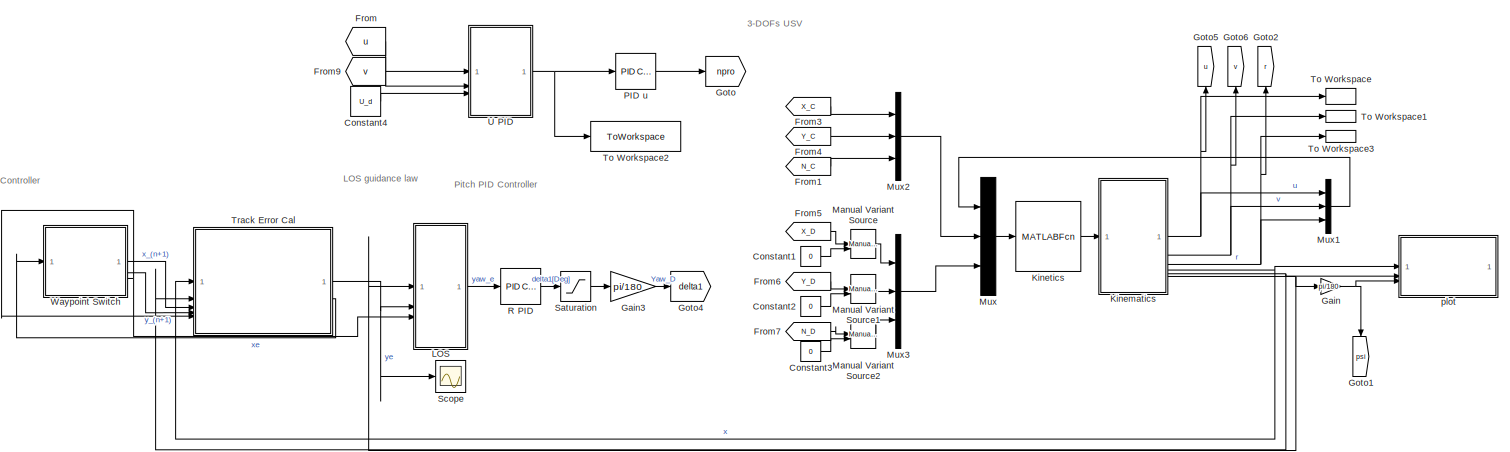
[diagram: root canvas - part 1/3, full width, top band]
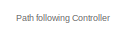
[diagram: root canvas - part 2/3, top left region]
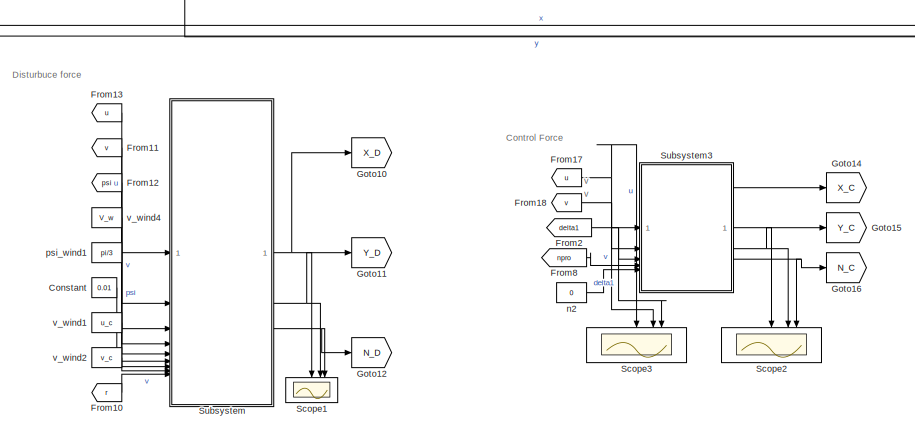
[diagram: root canvas - part 3/3, bottom center region]
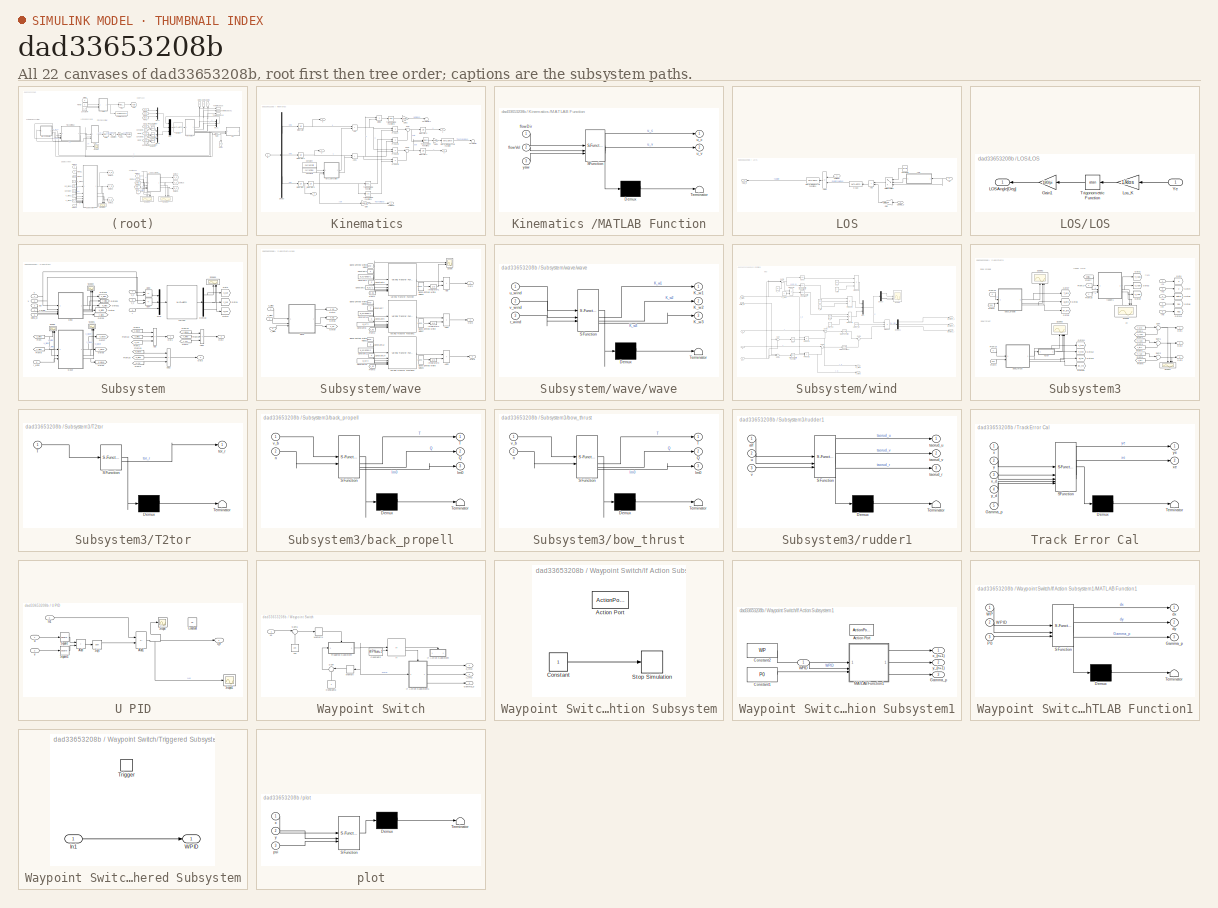
[diagram: thumbnail index - all 22 canvases of the model, root first then tree order]
MODEL slx_dad33653208b
KIND model
CONFIG AbsTol = auto
CONFIG EnableMultiTasking = off
CONFIG FixedStep = 0.01
CONFIG InitFcn = InitParam_cs;\n
CONFIG MaxStep = auto
CONFIG MinStep = auto
CONFIG RelTol = 1e-3
CONFIG SampleTimeConstraint = Unconstrained
CONFIG SolverName = FixedStepAuto
CONFIG StartTime = 0
CONFIG StopFcn = plotTrack;
CONFIG StopTime = inf
BLOCK [Constant] Constant
  Value = 0.01
BLOCK [Constant] Constant1
  Value = 0
BLOCK [Constant] Constant2
  Value = 0
BLOCK [Constant] Constant3
  Value = 0
BLOCK [Constant] Constant4
  Value = U_d
BLOCK [From] From
  GotoTag = u
BLOCK [From] From1
  GotoTag = N_C
BLOCK [From] From10
  GotoTag = r
BLOCK [From] From11
  GotoTag = v
BLOCK [From] From12
  GotoTag = psi
BLOCK [From] From13
  GotoTag = u
BLOCK [From] From17
  GotoTag = u
BLOCK [From] From18
  GotoTag = v
BLOCK [From] From2
  GotoTag = delta1
BLOCK [From] From3
  GotoTag = X_C
BLOCK [From] From4
  GotoTag = Y_C
BLOCK [From] From5
  GotoTag = X_D
BLOCK [From] From6
  GotoTag = Y_D
BLOCK [From] From7
  GotoTag = N_D
BLOCK [From] From8
  GotoTag = npro
BLOCK [From] From9
  GotoTag = v
BLOCK [Gain] Gain
  Gain = pi/180
BLOCK [Gain] Gain3
  Gain = pi/180
BLOCK [Goto] Goto
  GotoTag = npro
BLOCK [Goto] Goto1
  GotoTag = psi
  NameLocation = left
BLOCK [Goto] Goto10
  GotoTag = X_D
BLOCK [Goto] Goto11
  GotoTag = Y_D
BLOCK [Goto] Goto12
  GotoTag = N_D
BLOCK [Goto] Goto14
  GotoTag = X_C
BLOCK [Goto] Goto15
  GotoTag = Y_C
BLOCK [Goto] Goto16
  GotoTag = N_C
BLOCK [Goto] Goto2
  GotoTag = r
  NameLocation = right
BLOCK [Goto] Goto4
  GotoTag = delta1
BLOCK [Goto] Goto5
  GotoTag = u
  NameLocation = right
BLOCK [Goto] Goto6
  GotoTag = v
  NameLocation = right
BLOCK [SubSystem] Kinematics 
BLOCK [Sum] Kinematics /Add
  IconShape = rectangular
BLOCK [Sum] Kinematics /Add1
  IconShape = rectangular
BLOCK [Constant] Kinematics /Constant
  Value = currentDir
BLOCK [Constant] Kinematics /Constant1
  Value = currentVel
BLOCK [Demux] Kinematics /Demux
  Outputs = 3
BLOCK [Product] Kinematics /Divide
  Inputs = */
BLOCK [Gain] Kinematics /Gain
  Gain = 180/pi
BLOCK [Gain] Kinematics /Gain1
  Gain = 180/pi
BLOCK [Gain] Kinematics /Gain2
  Gain = 180/pi
BLOCK [Inport] Kinematics /In
BLOCK [Integrator] Kinematics /Integrator
  InitialCondition = u0
BLOCK [Integrator] Kinematics /Integrator1
BLOCK [Integrator] Kinematics /Integrator2
BLOCK [Integrator] Kinematics /Integrator3
  InitialCondition = B0(1)
BLOCK [Integrator] Kinematics /Integrator4
  InitialCondition = B0(2)
BLOCK [Integrator] Kinematics /Integrator5
  InitialCondition = yawInit*pi/180
  WrapState = on
  WrappedStateLowerValue = 0
  WrappedStateUpperValue = 6.2832
BLOCK [MATLABFcn] Kinematics /Interpreted MATLAB Function
  MATLABFcn = OrientationDegSat
BLOCK [SubSystem] Kinematics /MATLAB Function
  ErrorFcn = Stateflow.Translate.translate
  PermitHierarchicalResolution = ExplicitOnly
  SFBlockType = MATLAB Function
  TreatAsAtomicUnit = on
BLOCK [Demux] Kinematics /MATLAB Function/ Demux 
  Outputs = 1
BLOCK [S-Function] Kinematics /MATLAB Function/ SFunction 
  EnableBusSupport = on
  FunctionName = sf_sfun
  PortCounts = [3 3]
  SFcnIsStateOwnerBlock = off
  SFunctionDeploymentMode = off
  Tag = Stateflow S-Function 4
BLOCK [Terminator] Kinematics /MATLAB Function/ Terminator 
BLOCK [Inport] Kinematics /MATLAB Function/flowDir
BLOCK [Inport] Kinematics /MATLAB Function/flowVel
  Port = 2
BLOCK [Outport] Kinematics /MATLAB Function/u_c
BLOCK [Outport] Kinematics /MATLAB Function/u_v
  Port = 2
BLOCK [Inport] Kinematics /MATLAB Function/yaw
  Port = 3
BLOCK [Product] Kinematics /Product
BLOCK [Product] Kinematics /Product1
BLOCK [Product] Kinematics /Product2
BLOCK [Product] Kinematics /Product3
BLOCK [Sum] Kinematics /Sum
  Inputs = |+-
BLOCK [Sum] Kinematics /Sum1
  Inputs = |++
BLOCK [Terminator] Kinematics /Terminator
BLOCK [Terminator] Kinematics /Terminator1
BLOCK [Trigonometry] Kinematics /Trigonometric Function
BLOCK [Trigonometry] Kinematics /Trigonometric Function1
  Operator = cos
BLOCK [Trigonometry] Kinematics /Trigonometric Function2
  Operator = atan2
BLOCK [Trigonometry] Kinematics /Trigonometric Function3
  Operator = atan
BLOCK [Outport] Kinematics /Yaw[Deg]
  Port = 6
BLOCK [Outport] Kinematics /r
  Port = 3
BLOCK [Outport] Kinematics /u
BLOCK [Outport] Kinematics /v
  Port = 2
BLOCK [Outport] Kinematics /x
  Port = 4
BLOCK [Outport] Kinematics /y
  Port = 5
BLOCK [MATLABFcn] Kinetics
  MATLABFcn = USVforce
  OutputDimensions = 3
  OutputSignalType = real
BLOCK [SubSystem] LOS
  NameLocation = top
BLOCK [MATLABFcn] LOS/0-360
  MATLABFcn = OrientationDegSat
  NameLocation = top
  OutputDimensions = 1
BLOCK [Sum] LOS/Add
  IconShape = rectangular
  NameLocation = top
BLOCK [Sum] LOS/Add1
  IconShape = rectangular
  Inputs = -+
  NameLocation = top
BLOCK [Constant] LOS/Constant1
  NameLocation = top
  Value = losAlg
BLOCK [Gain] LOS/Gain
  Gain = 180/pi
  NameLocation = top
BLOCK [Inport] LOS/Gamma_p
  Port = 3
BLOCK [MATLABFcn] LOS/Interpreted MATLAB Function1
  MATLABFcn = OrientationErrorDegSat
  NameLocation = top
  OutputDimensions = 1
BLOCK [SubSystem] LOS/LOS
  NameLocation = top
BLOCK [Gain] LOS/LOS/Gain1
  Gain = 180/pi
  NameLocation = top
BLOCK [Outport] LOS/LOS/LOSAngle[Deg]
BLOCK [Gain] LOS/LOS/Los_K
  Gain = 1/klos
  NameLocation = top
BLOCK [Trigonometry] LOS/LOS/Trigonometric Function
  NameLocation = top
  Operator = atan
BLOCK [Inport] LOS/LOS/Ye
BLOCK [MultiPortSwitch] LOS/Multiport Switch
  InputSameDT = off
  Inputs = 2
  NameLocation = top
  SaturateOnIntegerOverflow = off
BLOCK [Outport] LOS/Yaw_e
  NameLocation = top
BLOCK [Inport] LOS/Ye
  Port = 2
BLOCK [Inport] LOS/psi[Deg]
BLOCK [Reference] Manual Variant Source  REF=simulink/Signal
Routing/Manual
Variant Source
  SourceBlock = simulink/Signal\nRouting/Manual\nVariant Source
  SourceType = ManualVariantSource
BLOCK [Reference] Manual Variant Source1  REF=simulink/Signal
Routing/Manual
Variant Source
  SourceBlock = simulink/Signal\nRouting/Manual\nVariant Source
  SourceType = ManualVariantSource
BLOCK [Reference] Manual Variant Source2  REF=simulink/Signal
Routing/Manual
Variant Source
  SourceBlock = simulink/Signal\nRouting/Manual\nVariant Source
  SourceType = ManualVariantSource
BLOCK [Mux] Mux
  DisplayOption = bar
  Inputs = 3
BLOCK [Mux] Mux1
  DisplayOption = bar
  Inputs = 3
BLOCK [Mux] Mux2
  DisplayOption = bar
  Inputs = 3
BLOCK [Mux] Mux3
  DisplayOption = bar
  Inputs = 3
BLOCK [Reference] PID u  REF=slpidlib/PID Controller
  LibrarySourceBlock = simulink/Continuous/PID Controller
  SourceBlock = slpidlib/PID Controller
  SourceType = PID 1dof
BLOCK [Reference] R PID   REF=slpidlib/PID Controller
  SourceBlock = slpidlib/PID Controller
  SourceType = PID 1dof
BLOCK [Saturate] Saturation
  LowerLimit = -60
  NameLocation = top
  UpperLimit = 60
BLOCK [Scope] Scope
  Floating = off
  NumInputPorts = 1
  ScopeSpecificationString = Simulink.scopes.TimeScopeBlockCfg('CurrentConfiguration', extmgr.ConfigurationSet(extmgr.Configuration('Core','General UI',true),extmgr.Configuration('Core','Source UI',true),extmgr.Configuration('Sources','WiredSimulink',true,'DataLoggingVariableName','ScopeData1'),extmgr.Configuration('Visuals','Time Domain',true,'SerializedDisplays',{struct('MinYLimReal','-1.00873','MaxYLimReal','9.07856','YLab...<+1643ch>
BLOCK [Scope] Scope1
  Floating = off
  NameLocation = left
  NumInputPorts = 3
  ScopeSpecificationString = Simulink.scopes.TimeScopeBlockCfg('CurrentConfiguration', extmgr.ConfigurationSet(extmgr.Configuration('Core','General UI',true),extmgr.Configuration('Core','Source UI',true),extmgr.Configuration('Sources','WiredSimulink',true,'DataLoggingVariableName','tD','DataLogging',true,'DataLoggingSaveFormat','Structure'),extmgr.Configuration('Visuals','Time Domain',true,'SerializedDisplays',{struct('MinYLi...<+1734ch>
BLOCK [Scope] Scope2
  Floating = off
  NameLocation = left
  NumInputPorts = 3
  ScopeSpecificationString = Simulink.scopes.TimeScopeBlockCfg('CurrentConfiguration', extmgr.ConfigurationSet(extmgr.Configuration('Core','General UI',true),extmgr.Configuration('Core','Source UI',true),extmgr.Configuration('Sources','WiredSimulink',true,'DataLogging',true,'DataLoggingSaveFormat','Structure','DataLoggingVariableName','tC'),extmgr.Configuration('Visuals','Time Domain',true,'SerializedDisplays',{struct('MinYLi...<+2808ch>
BLOCK [Scope] Scope3
  Floating = off
  NameLocation = left
  NumInputPorts = 3
  ScopeSpecificationString = Simulink.scopes.TimeScopeBlockCfg('CurrentConfiguration', extmgr.ConfigurationSet(extmgr.Configuration('Core','General UI',true),extmgr.Configuration('Core','Source UI',true),extmgr.Configuration('Sources','WiredSimulink',true,'DataLogging',true,'DataLoggingSaveFormat','Structure','DataLoggingVariableName','ScopeData6'),extmgr.Configuration('Visuals','Time Domain',true,'SerializedDisplays',{struct...<+2801ch>
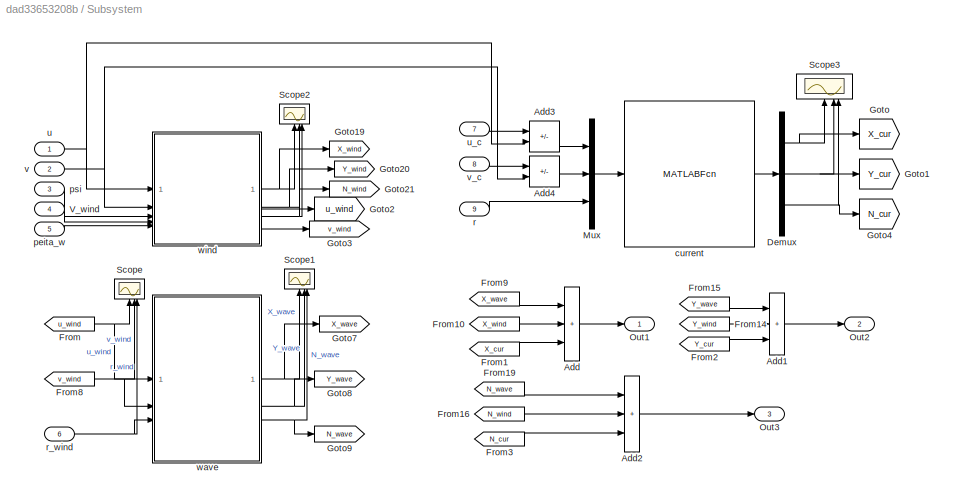
BLOCK [SubSystem] Subsystem
BLOCK [Sum] Subsystem/Add
  IconShape = rectangular
  Inputs = +++
BLOCK [Sum] Subsystem/Add1
  IconShape = rectangular
  Inputs = +++
BLOCK [Sum] Subsystem/Add2
  IconShape = rectangular
  Inputs = +++
BLOCK [Sum] Subsystem/Add3
  IconShape = rectangular
  Inputs = +-
BLOCK [Sum] Subsystem/Add4
  IconShape = rectangular
  Inputs = +-
BLOCK [Demux] Subsystem/Demux
  Outputs = 3
BLOCK [From] Subsystem/From
  GotoTag = u_wind
BLOCK [From] Subsystem/From1
  GotoTag = X_cur
BLOCK [From] Subsystem/From10
  GotoTag = X_wind
BLOCK [From] Subsystem/From14
  GotoTag = Y_wind
BLOCK [From] Subsystem/From15
  GotoTag = Y_wave
BLOCK [From] Subsystem/From16
  GotoTag = N_wind
BLOCK [From] Subsystem/From19
  GotoTag = N_wave
BLOCK [From] Subsystem/From2
  GotoTag = Y_cur
BLOCK [From] Subsystem/From3
  GotoTag = N_cur
BLOCK [From] Subsystem/From8
  GotoTag = v_wind
BLOCK [From] Subsystem/From9
  GotoTag = X_wave
BLOCK [Goto] Subsystem/Goto
  GotoTag = X_cur
BLOCK [Goto] Subsystem/Goto1
  GotoTag = Y_cur
BLOCK [Goto] Subsystem/Goto19
  GotoTag = X_wind
BLOCK [Goto] Subsystem/Goto2
  GotoTag = u_wind
BLOCK [Goto] Subsystem/Goto20
  GotoTag = Y_wind
BLOCK [Goto] Subsystem/Goto21
  GotoTag = N_wind
BLOCK [Goto] Subsystem/Goto3
  GotoTag = v_wind
BLOCK [Goto] Subsystem/Goto4
  GotoTag = N_cur
BLOCK [Goto] Subsystem/Goto7
  GotoTag = X_wave
BLOCK [Goto] Subsystem/Goto8
  GotoTag = Y_wave
BLOCK [Goto] Subsystem/Goto9
  GotoTag = N_wave
BLOCK [Mux] Subsystem/Mux
  DisplayOption = bar
  Inputs = 3
BLOCK [Outport] Subsystem/Out1
BLOCK [Outport] Subsystem/Out2
  Port = 2
BLOCK [Outport] Subsystem/Out3
  Port = 3
BLOCK [Scope] Subsystem/Scope
  Floating = off
  NameLocation = right
  NumInputPorts = 3
  ScopeSpecificationString = Simulink.scopes.TimeScopeBlockCfg('CurrentConfiguration', extmgr.ConfigurationSet(extmgr.Configuration('Core','General UI',true),extmgr.Configuration('Core','Source UI',true),extmgr.Configuration('Sources','WiredSimulink',true,'DataLoggingVariableName','ScopeData1'),extmgr.Configuration('Visuals','Time Domain',true,'SerializedDisplays',{struct('MinYLimReal','0.45331','MaxYLimReal','0.73848','YLabe...<+2800ch>
BLOCK [Scope] Subsystem/Scope1
  Floating = off
  NameLocation = right
  NumInputPorts = 3
  ScopeSpecificationString = Simulink.scopes.TimeScopeBlockCfg('CurrentConfiguration', extmgr.ConfigurationSet(extmgr.Configuration('Core','General UI',true),extmgr.Configuration('Core','Source UI',true),extmgr.Configuration('Sources','WiredSimulink',true,'DataLoggingVariableName','twave','DataLogging',true,'DataLoggingSaveFormat','Structure'),extmgr.Configuration('Visuals','Time Domain',true,'SerializedDisplays',{struct('Min...<+2785ch>
BLOCK [Scope] Subsystem/Scope2
  Floating = off
  NameLocation = right
  NumInputPorts = 3
  ScopeSpecificationString = Simulink.scopes.TimeScopeBlockCfg('CurrentConfiguration', extmgr.ConfigurationSet(extmgr.Configuration('Core','General UI',true),extmgr.Configuration('Core','Source UI',true),extmgr.Configuration('Sources','WiredSimulink',true,'DataLoggingVariableName','twind','DataLogging',true,'DataLoggingSaveFormat','Structure'),extmgr.Configuration('Visuals','Time Domain',true,'SerializedDisplays',{struct('Min...<+2921ch>
BLOCK [Scope] Subsystem/Scope3
  Floating = off
  NameLocation = right
  NumInputPorts = 3
  ScopeSpecificationString = Simulink.scopes.TimeScopeBlockCfg('CurrentConfiguration', extmgr.ConfigurationSet(extmgr.Configuration('Core','General UI',true),extmgr.Configuration('Core','Source UI',true),extmgr.Configuration('Sources','WiredSimulink',true,'DataLoggingVariableName','tcur','DataLogging',true,'DataLoggingSaveFormat','Structure'),extmgr.Configuration('Visuals','Time Domain',true,'SerializedDisplays',{struct('MinY...<+2920ch>
BLOCK [Inport] Subsystem/V_wind
  Port = 4
BLOCK [MATLABFcn] Subsystem/current
  MATLABFcn = current
BLOCK [Inport] Subsystem/peita_w
  Port = 5
BLOCK [Inport] Subsystem/psi
  Port = 3
BLOCK [Inport] Subsystem/r
  Port = 9
BLOCK [Inport] Subsystem/r_wind
  Port = 6
BLOCK [Inport] Subsystem/u
BLOCK [Inport] Subsystem/u_c
  Port = 7
BLOCK [Inport] Subsystem/v
  Port = 2
BLOCK [Inport] Subsystem/v_c
  Port = 8
BLOCK [SubSystem] Subsystem/wave
BLOCK [Sum] Subsystem/wave/Add
  IconShape = rectangular
BLOCK [Sum] Subsystem/wave/Add1
  IconShape = rectangular
BLOCK [Sum] Subsystem/wave/Add2
  IconShape = rectangular
BLOCK [Reference] Subsystem/wave/Band-Limited White Noise  REF=simulink/Sources/Band-Limited
White Noise
  SourceBlock = simulink/Sources/Band-Limited\nWhite Noise
  SourceType = Band-Limited White Noise.
BLOCK [Reference] Subsystem/wave/Band-Limited White Noise1  REF=simulink/Sources/Band-Limited
White Noise
  SourceBlock = simulink/Sources/Band-Limited\nWhite Noise
  SourceType = Band-Limited White Noise.
BLOCK [Reference] Subsystem/wave/Band-Limited White Noise2  REF=simulink/Sources/Band-Limited
White Noise
  SourceBlock = simulink/Sources/Band-Limited\nWhite Noise
  SourceType = Band-Limited White Noise.
BLOCK [Reference] Subsystem/wave/Band-Limited White Noise3  REF=simulink/Sources/Band-Limited
White Noise
  SourceBlock = simulink/Sources/Band-Limited\nWhite Noise
  SourceType = Band-Limited White Noise.
BLOCK [Reference] Subsystem/wave/Band-Limited White Noise6  REF=simulink/Sources/Band-Limited
White Noise
  SourceBlock = simulink/Sources/Band-Limited\nWhite Noise
  SourceType = Band-Limited White Noise.
BLOCK [Reference] Subsystem/wave/Band-Limited White Noise7  REF=simulink/Sources/Band-Limited
White Noise
  SourceBlock = simulink/Sources/Band-Limited\nWhite Noise
  SourceType = Band-Limited White Noise.
BLOCK [Constant] Subsystem/wave/Constant1
  Value = 0
BLOCK [Constant] Subsystem/wave/Constant10
  Value = w_e2*lamda*2
BLOCK [Constant] Subsystem/wave/Constant11
  Value = w_e6*lamda*2
BLOCK [Constant] Subsystem/wave/Constant12
  Value = 0
BLOCK [Constant] Subsystem/wave/Constant13
  Value = w_e6^2
BLOCK [Constant] Subsystem/wave/Constant14
  Value = 0
BLOCK [Constant] Subsystem/wave/Constant2
  Value = w_e1^2
BLOCK [Constant] Subsystem/wave/Constant3
  Value = 0
BLOCK [Constant] Subsystem/wave/Constant4
  Value = w_e1*lamda*2
BLOCK [Constant] Subsystem/wave/Constant7
  Value = 0
BLOCK [Constant] Subsystem/wave/Constant8
  Value = w_e2^2
BLOCK [Constant] Subsystem/wave/Constant9
  Value = 0
BLOCK [From] Subsystem/wave/From1
  GotoTag = k_w1
BLOCK [From] Subsystem/wave/From2
  GotoTag = k_w2
BLOCK [From] Subsystem/wave/From3
  GotoTag = k_w3
BLOCK [Goto] Subsystem/wave/Goto7
  GotoTag = k_w1
BLOCK [Goto] Subsystem/wave/Goto8
  GotoTag = k_w2
BLOCK [Goto] Subsystem/wave/Goto9
  GotoTag = k_w3
BLOCK [Integrator] Subsystem/wave/Integrator1
BLOCK [Integrator] Subsystem/wave/Integrator2
BLOCK [Integrator] Subsystem/wave/Integrator3
BLOCK [Outport] Subsystem/wave/Out1
BLOCK [Outport] Subsystem/wave/Out2
  Port = 2
BLOCK [Outport] Subsystem/wave/Out3
  Port = 3
BLOCK [Scope] Subsystem/wave/Scope
  Floating = off
  NumInputPorts = 2
  ScopeSpecificationString = Simulink.scopes.TimeScopeBlockCfg('CurrentConfiguration', extmgr.ConfigurationSet(extmgr.Configuration('Core','General UI',true),extmgr.Configuration('Core','Source UI',true),extmgr.Configuration('Sources','WiredSimulink',true,'DataLoggingVariableName','ScopeData3'),extmgr.Configuration('Visuals','Time Domain',true,'SerializedDisplays',{struct('MinYLimReal','-3.52342','MaxYLimReal','2.68855','YLab...<+1490ch>
BLOCK [Reference] Subsystem/wave/Varying Transfer Function  REF=cstblocks/Linear Parameter Varying/Varying Transfer Function
  SourceBlock = cstblocks/Linear Parameter Varying/Varying Transfer Function
  SourceType = Varying Transfer Function
BLOCK [Reference] Subsystem/wave/Varying Transfer Function1  REF=cstblocks/Linear Parameter Varying/Varying Transfer Function
  SourceBlock = cstblocks/Linear Parameter Varying/Varying Transfer Function
  SourceType = Varying Transfer Function
BLOCK [Reference] Subsystem/wave/Varying Transfer Function2  REF=cstblocks/Linear Parameter Varying/Varying Transfer Function
  SourceBlock = cstblocks/Linear Parameter Varying/Varying Transfer Function
  SourceType = Varying Transfer Function
BLOCK [Inport] Subsystem/wave/r_wind
  Port = 3
BLOCK [Inport] Subsystem/wave/u_wind
BLOCK [Inport] Subsystem/wave/v_wind
  Port = 2
BLOCK [SubSystem] Subsystem/wave/wave
  ErrorFcn = Stateflow.Translate.translate
  PermitHierarchicalResolution = ExplicitOnly
  SFBlockType = MATLAB Function
  TreatAsAtomicUnit = on
BLOCK [Demux] Subsystem/wave/wave/ Demux 
  Outputs = 1
BLOCK [S-Function] Subsystem/wave/wave/ SFunction 
  EnableBusSupport = on
  FunctionName = sf_sfun
  PortCounts = [3 4]
  SFcnIsStateOwnerBlock = off
  SFunctionDeploymentMode = off
  Tag = Stateflow S-Function 7
BLOCK [Terminator] Subsystem/wave/wave/ Terminator 
BLOCK [Outport] Subsystem/wave/wave/K_w1
BLOCK [Outport] Subsystem/wave/wave/K_w2
  Port = 2
BLOCK [Outport] Subsystem/wave/wave/K_w3
  Port = 3
BLOCK [Inport] Subsystem/wave/wave/r_wind
  Port = 3
BLOCK [Inport] Subsystem/wave/wave/u_wind
BLOCK [Inport] Subsystem/wave/wave/v_wind
  Port = 2
BLOCK [SubSystem] Subsystem/wind
BLOCK [Constant] Subsystem/wind/1//2rou_air
  Value = 0.645
BLOCK [Constant] Subsystem/wind/A_fw
BLOCK [Constant] Subsystem/wind/A_lw
BLOCK [Constant] Subsystem/wind/A_lw*L_oq
BLOCK [Constant] Subsystem/wind/C_n
  Value = 0.1
BLOCK [Constant] Subsystem/wind/C_x
  Value = -0.6
BLOCK [Constant] Subsystem/wind/C_y
  Value = -0.8
BLOCK [Constant] Subsystem/wind/C_y1
  Value = pi
BLOCK [Trigonometry] Subsystem/wind/Cos
  Operator = cos
BLOCK [Trigonometry] Subsystem/wind/Cos1
  Operator = cos
BLOCK [Demux] Subsystem/wind/Demux
  Outputs = 3
BLOCK [Demux] Subsystem/wind/Demux1
  Outputs = 3
BLOCK [Constant] Subsystem/wind/L_oa1
  Value = 2
BLOCK [Math] Subsystem/wind/Math Function
  Operator = square
  SignedPower = on
BLOCK [Math] Subsystem/wind/Math Function1
  Operator = square
  SignedPower = on
BLOCK [Mux] Subsystem/wind/Mux
  DisplayOption = bar
  Inputs = 3
BLOCK [Product] Subsystem/wind/Product
  Inputs = 3
BLOCK [Product] Subsystem/wind/Product1
BLOCK [Product] Subsystem/wind/Product2
BLOCK [Product] Subsystem/wind/Product3
  Inputs = 3
BLOCK [Product] Subsystem/wind/Product4
  Inputs = 3
BLOCK [Product] Subsystem/wind/Product5
  Inputs = 3
BLOCK [Product] Subsystem/wind/Product6
BLOCK [Scope] Subsystem/wind/Scope
  Floating = off
  NumInputPorts = 3
  ScopeSpecificationString = Simulink.scopes.TimeScopeBlockCfg('CurrentConfiguration', extmgr.ConfigurationSet(extmgr.Configuration('Core','General UI',true),extmgr.Configuration('Core','Source UI',true),extmgr.Configuration('Sources','WiredSimulink',true),extmgr.Configuration('Visuals','Time Domain',true,'SerializedDisplays',{struct('MinYLimReal','0.5','MaxYLimReal','0.7','YLabelReal','','MinYLimMag','0.5','MaxYLimMag','0.7'...<+2656ch>
BLOCK [Sum] Subsystem/wind/Sum
  Inputs = |+-
BLOCK [Sum] Subsystem/wind/Sum1
  Inputs = |+-
BLOCK [Sum] Subsystem/wind/Sum2
  Inputs = |+-
BLOCK [Sum] Subsystem/wind/Sum3
  Inputs = |+-
BLOCK [Sum] Subsystem/wind/Sum4
  Inputs = |++
BLOCK [Sum] Subsystem/wind/Sum5
  Inputs = |+--
BLOCK [Trigonometry] Subsystem/wind/Trigonometric Function
BLOCK [Trigonometry] Subsystem/wind/Trigonometric Function1
BLOCK [Trigonometry] Subsystem/wind/Trigonometric Function2
BLOCK [Inport] Subsystem/wind/V_wind
  Port = 4
BLOCK [Inport] Subsystem/wind/peita_w
  Port = 5
BLOCK [Inport] Subsystem/wind/psi
  Port = 3
BLOCK [Outport] Subsystem/wind/taowind_r
  Port = 3
  VectorParamsAs1DForOutWhenUnconnected = off
BLOCK [Outport] Subsystem/wind/taowind_u
  VectorParamsAs1DForOutWhenUnconnected = off
BLOCK [Outport] Subsystem/wind/taowind_v
  Port = 2
  VectorParamsAs1DForOutWhenUnconnected = off
BLOCK [Inport] Subsystem/wind/u
BLOCK [Outport] Subsystem/wind/u_wind
  Port = 4
  VectorParamsAs1DForOutWhenUnconnected = off
BLOCK [Inport] Subsystem/wind/v
  Port = 2
BLOCK [Outport] Subsystem/wind/v_wind
  Port = 5
  VectorParamsAs1DForOutWhenUnconnected = off
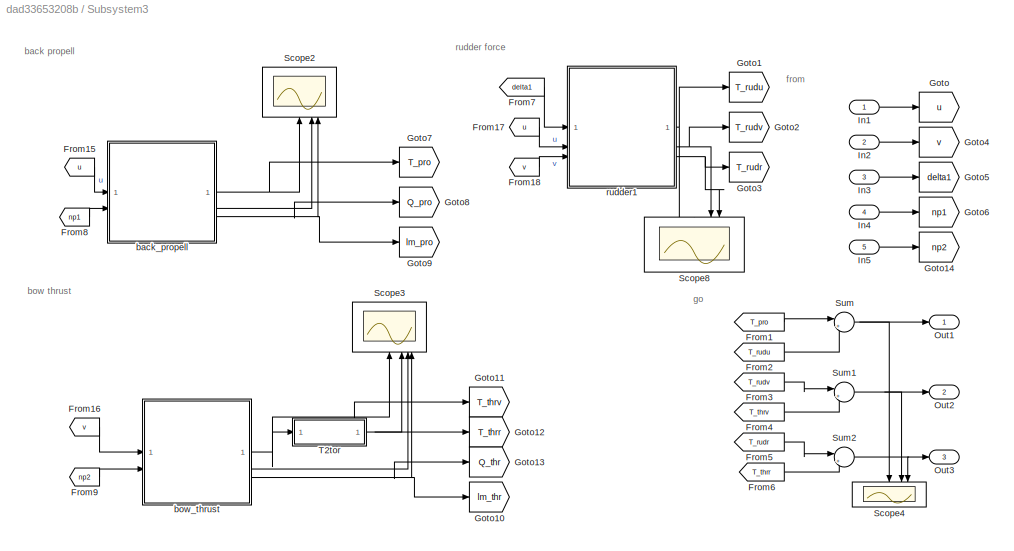
BLOCK [SubSystem] Subsystem3
BLOCK [From] Subsystem3/From1
  GotoTag = T_pro
BLOCK [From] Subsystem3/From15
  GotoTag = u
BLOCK [From] Subsystem3/From16
  GotoTag = v
BLOCK [From] Subsystem3/From17
  GotoTag = u
BLOCK [From] Subsystem3/From18
  GotoTag = v
BLOCK [From] Subsystem3/From2
  GotoTag = T_rudu
BLOCK [From] Subsystem3/From3
  GotoTag = T_rudv
BLOCK [From] Subsystem3/From4
  GotoTag = T_thrv
BLOCK [From] Subsystem3/From5
  GotoTag = T_rudr
BLOCK [From] Subsystem3/From6
  GotoTag = T_thrr
BLOCK [From] Subsystem3/From7
  GotoTag = delta1
BLOCK [From] Subsystem3/From8
  GotoTag = np1
BLOCK [From] Subsystem3/From9
  GotoTag = np2
BLOCK [Goto] Subsystem3/Goto
  GotoTag = u
BLOCK [Goto] Subsystem3/Goto1
  GotoTag = T_rudu
BLOCK [Goto] Subsystem3/Goto10
  GotoTag = lm_thr
BLOCK [Goto] Subsystem3/Goto11
  GotoTag = T_thrv
BLOCK [Goto] Subsystem3/Goto12
  GotoTag = T_thrr
BLOCK [Goto] Subsystem3/Goto13
  GotoTag = Q_thr
BLOCK [Goto] Subsystem3/Goto14
  GotoTag = np2
BLOCK [Goto] Subsystem3/Goto2
  GotoTag = T_rudv
BLOCK [Goto] Subsystem3/Goto3
  GotoTag = T_rudr
BLOCK [Goto] Subsystem3/Goto4
  GotoTag = v
BLOCK [Goto] Subsystem3/Goto5
  GotoTag = delta1
BLOCK [Goto] Subsystem3/Goto6
  GotoTag = np1
BLOCK [Goto] Subsystem3/Goto7
  GotoTag = T_pro
BLOCK [Goto] Subsystem3/Goto8
  GotoTag = Q_pro
BLOCK [Goto] Subsystem3/Goto9
  GotoTag = lm_pro
BLOCK [Inport] Subsystem3/In1
BLOCK [Inport] Subsystem3/In2
  Port = 2
BLOCK [Inport] Subsystem3/In3
  Port = 3
BLOCK [Inport] Subsystem3/In4
  Port = 4
BLOCK [Inport] Subsystem3/In5
  Port = 5
BLOCK [Outport] Subsystem3/Out1
BLOCK [Outport] Subsystem3/Out2
  Port = 2
BLOCK [Outport] Subsystem3/Out3
  Port = 3
BLOCK [Scope] Subsystem3/Scope2
  Floating = off
  NameLocation = right
  NumInputPorts = 3
  ScopeSpecificationString = Simulink.scopes.TimeScopeBlockCfg('CurrentConfiguration', extmgr.ConfigurationSet(extmgr.Configuration('Core','General UI',true),extmgr.Configuration('Core','Source UI',true),extmgr.Configuration('Sources','WiredSimulink',true,'DataLoggingSaveFormat','Structure','DataLoggingVariableName','ScopeData1'),extmgr.Configuration('Visuals','Time Domain',true,'SerializedDisplays',{struct('MinYLimReal','53....<+3131ch>
BLOCK [Scope] Subsystem3/Scope3
  Floating = off
  NameLocation = right
  NumInputPorts = 4
  ScopeSpecificationString = Simulink.scopes.TimeScopeBlockCfg('CurrentConfiguration', extmgr.ConfigurationSet(extmgr.Configuration('Core','General UI',true),extmgr.Configuration('Core','Source UI',true),extmgr.Configuration('Sources','WiredSimulink',true,'DataLoggingSaveFormat','Structure','DataLoggingVariableName','ScopeData2'),extmgr.Configuration('Visuals','Time Domain',true,'SerializedDisplays',{struct('MinYLimReal','0.0...<+2758ch>
BLOCK [Scope] Subsystem3/Scope4
  Floating = off
  NameLocation = left
  NumInputPorts = 3
  ScopeSpecificationString = Simulink.scopes.TimeScopeBlockCfg('CurrentConfiguration', extmgr.ConfigurationSet(extmgr.Configuration('Core','General UI',true),extmgr.Configuration('Core','Source UI',true),extmgr.Configuration('Sources','WiredSimulink',true,'DataLoggingSaveFormat','Structure','DataLoggingVariableName','ScopeData2'),extmgr.Configuration('Visuals','Time Domain',true,'SerializedDisplays',{struct('MinYLimReal','63....<+2825ch>
BLOCK [Scope] Subsystem3/Scope8
  Floating = off
  NameLocation = left
  NumInputPorts = 3
  ScopeSpecificationString = Simulink.scopes.TimeScopeBlockCfg('CurrentConfiguration', extmgr.ConfigurationSet(extmgr.Configuration('Core','General UI',true),extmgr.Configuration('Core','Source UI',true),extmgr.Configuration('Sources','WiredSimulink',true,'DataLogging',true,'DataLoggingSaveFormat','Structure','DataLoggingVariableName','ScopeData4'),extmgr.Configuration('Visuals','Time Domain',true,'SerializedDisplays',{struct...<+2836ch>
BLOCK [Sum] Subsystem3/Sum
  Inputs = |++
BLOCK [Sum] Subsystem3/Sum1
  Inputs = |++
BLOCK [Sum] Subsystem3/Sum2
  Inputs = |++
BLOCK [SubSystem] Subsystem3/T2tor
  ErrorFcn = Stateflow.Translate.translate
  PermitHierarchicalResolution = ExplicitOnly
  SFBlockType = MATLAB Function
  TreatAsAtomicUnit = on
BLOCK [Demux] Subsystem3/T2tor/ Demux 
  Outputs = 1
BLOCK [S-Function] Subsystem3/T2tor/ SFunction 
  EnableBusSupport = on
  FunctionName = sf_sfun
  PortCounts = [1 2]
  SFcnIsStateOwnerBlock = off
  SFunctionDeploymentMode = off
  Tag = Stateflow S-Function 5
BLOCK [Terminator] Subsystem3/T2tor/ Terminator 
BLOCK [Inport] Subsystem3/T2tor/T
BLOCK [Outport] Subsystem3/T2tor/tor_r
BLOCK [SubSystem] Subsystem3/back_propell
  ErrorFcn = Stateflow.Translate.translate
  PermitHierarchicalResolution = ExplicitOnly
  SFBlockType = MATLAB Function
  TreatAsAtomicUnit = on
BLOCK [Demux] Subsystem3/back_propell/ Demux 
  Outputs = 1
BLOCK [S-Function] Subsystem3/back_propell/ SFunction 
  EnableBusSupport = on
  FunctionName = sf_sfun
  PortCounts = [2 4]
  SFcnIsStateOwnerBlock = off
  SFunctionDeploymentMode = off
  Tag = Stateflow S-Function 3
BLOCK [Terminator] Subsystem3/back_propell/ Terminator 
BLOCK [Outport] Subsystem3/back_propell/Q
  Port = 2
BLOCK [Outport] Subsystem3/back_propell/T
BLOCK [Outport] Subsystem3/back_propell/lm0
  Port = 3
BLOCK [Inport] Subsystem3/back_propell/n
  Port = 2
BLOCK [Inport] Subsystem3/back_propell/v_b
BLOCK [SubSystem] Subsystem3/bow_thrust
  ErrorFcn = Stateflow.Translate.translate
  PermitHierarchicalResolution = ExplicitOnly
  SFBlockType = MATLAB Function
  TreatAsAtomicUnit = on
BLOCK [Demux] Subsystem3/bow_thrust/ Demux 
  Outputs = 1
BLOCK [S-Function] Subsystem3/bow_thrust/ SFunction 
  EnableBusSupport = on
  FunctionName = sf_sfun
  PortCounts = [2 4]
  SFcnIsStateOwnerBlock = off
  SFunctionDeploymentMode = off
  Tag = Stateflow S-Function 6
BLOCK [Terminator] Subsystem3/bow_thrust/ Terminator 
BLOCK [Outport] Subsystem3/bow_thrust/Q
  Port = 2
BLOCK [Outport] Subsystem3/bow_thrust/T
BLOCK [Outport] Subsystem3/bow_thrust/lm0
  Port = 3
BLOCK [Inport] Subsystem3/bow_thrust/n
  Port = 2
BLOCK [Inport] Subsystem3/bow_thrust/v_b
BLOCK [SubSystem] Subsystem3/rudder1
  ErrorFcn = Stateflow.Translate.translate
  PermitHierarchicalResolution = ExplicitOnly
  SFBlockType = MATLAB Function
  TreatAsAtomicUnit = on
BLOCK [Demux] Subsystem3/rudder1/ Demux 
  Outputs = 1
BLOCK [S-Function] Subsystem3/rudder1/ SFunction 
  EnableBusSupport = on
  FunctionName = sf_sfun
  PortCounts = [3 4]
  SFcnIsStateOwnerBlock = off
  SFunctionDeploymentMode = off
  Tag = Stateflow S-Function 9
BLOCK [Terminator] Subsystem3/rudder1/ Terminator 
BLOCK [Inport] Subsystem3/rudder1/alf
BLOCK [Outport] Subsystem3/rudder1/taorud_r
  Port = 3
BLOCK [Outport] Subsystem3/rudder1/taorud_u
BLOCK [Outport] Subsystem3/rudder1/taorud_v
  Port = 2
BLOCK [Inport] Subsystem3/rudder1/u
  Port = 2
BLOCK [Inport] Subsystem3/rudder1/v
  Port = 3
BLOCK [ToWorkspace] To Workspace
  FixptAsFi = on
  MaxDataPoints = inf
  SampleTime = -1
  VariableName = u
BLOCK [ToWorkspace] To Workspace1
  FixptAsFi = on
  MaxDataPoints = inf
  SampleTime = -1
  VariableName = v
BLOCK [ToWorkspace] To Workspace2
  FixptAsFi = on
  MaxDataPoints = inf
  SampleTime = -1
  SaveFormat = Timeseries
  VariableName = Ue
BLOCK [ToWorkspace] To Workspace3
  FixptAsFi = on
  MaxDataPoints = inf
  SampleTime = -1
  VariableName = r
BLOCK [SubSystem] Track Error Cal
  ErrorFcn = Stateflow.Translate.translate
  NameLocation = top
  PermitHierarchicalResolution = ExplicitOnly
  SFBlockType = MATLAB Function
  TreatAsAtomicUnit = on
BLOCK [Demux] Track Error Cal/ Demux 
  Outputs = 1
BLOCK [S-Function] Track Error Cal/ SFunction 
  EnableBusSupport = on
  FunctionName = sf_sfun
  PortCounts = [5 3]
  SFcnIsStateOwnerBlock = off
  SFunctionDeploymentMode = off
  Tag = Stateflow S-Function 2
BLOCK [Terminator] Track Error Cal/ Terminator 
BLOCK [Inport] Track Error Cal/Gamma_p
  Port = 5
BLOCK [Inport] Track Error Cal/x
BLOCK [Inport] Track Error Cal/x_d
  Port = 3
BLOCK [Outport] Track Error Cal/xe
  Port = 2
BLOCK [Inport] Track Error Cal/y
  Port = 2
BLOCK [Inport] Track Error Cal/y_d
  Port = 4
BLOCK [Outport] Track Error Cal/ye
BLOCK [SubSystem] U PID
BLOCK [Sum] U PID/Add
  IconShape = rectangular
BLOCK [Sum] U PID/Add1
  IconShape = rectangular
  Inputs = +-
BLOCK [Constant] U PID/Constant
  Value = 40
BLOCK [Inport] U PID/In1
  Port = 3
BLOCK [Scope] U PID/Scope
  Floating = off
  NumInputPorts = 1
  ScopeSpecificationString = Simulink.scopes.TimeScopeBlockCfg('CurrentConfiguration', extmgr.ConfigurationSet(extmgr.Configuration('Core','General UI',true),extmgr.Configuration('Core','Source UI',true),extmgr.Configuration('Sources','WiredSimulink',true,'DataLoggingVariableName','ScopeData2'),extmgr.Configuration('Visuals','Time Domain',true,'SerializedDisplays',{struct('MinYLimReal','-1.53473','MaxYLimReal','4.17053','YLab...<+1431ch>
BLOCK [Scope] U PID/Scope1
  Floating = off
  NumInputPorts = 1
  ScopeSpecificationString = Simulink.scopes.TimeScopeBlockCfg('CurrentConfiguration', extmgr.ConfigurationSet(extmgr.Configuration('Core','General UI',true),extmgr.Configuration('Core','Source UI',true),extmgr.Configuration('Sources','WiredSimulink',true,'DataLoggingVariableName','ScopeData1'),extmgr.Configuration('Visuals','Time Domain',true,'SerializedDisplays',{struct('MinYLimReal','-171660430.47261','MaxYLimReal','190733...<+1627ch>
BLOCK [Sqrt] U PID/Sqrt
BLOCK [Math] U PID/Square
  Operator = square
  RndMeth = Zero
  SignedPower = on
BLOCK [Math] U PID/Square1
  Operator = square
  RndMeth = Zero
  SignedPower = on
BLOCK [Inport] U PID/u
BLOCK [Outport] U PID/u_e
BLOCK [Inport] U PID/v
  Port = 2
BLOCK [SubSystem] Waypoint Switch
  NameLocation = top
BLOCK [Constant] Waypoint Switch/Constant2
  Value = WPNum+1
BLOCK [Constant] Waypoint Switch/Constant3
  NameLocation = right
BLOCK [Outport] Waypoint Switch/Gamma_p
  Port = 3
BLOCK [If] Waypoint Switch/If
  IfExpression = u1 >= u2
  NumInputs = 2
BLOCK [SubSystem] Waypoint Switch/If Action Subsystem
  TreatAsAtomicUnit = on
BLOCK [ActionPort] Waypoint Switch/If Action Subsystem/Action Port
  ActionPortLabel = if(u1 >= u2)
BLOCK [Constant] Waypoint Switch/If Action Subsystem/Constant
BLOCK [Stop] Waypoint Switch/If Action Subsystem/Stop Simulation
BLOCK [SubSystem] Waypoint Switch/If Action Subsystem1
  TreatAsAtomicUnit = on
BLOCK [ActionPort] Waypoint Switch/If Action Subsystem1/Action Port
  ActionPortLabel = else
BLOCK [Constant] Waypoint Switch/If Action Subsystem1/Constant1
  Value = P0
BLOCK [Constant] Waypoint Switch/If Action Subsystem1/Constant2
  Value = WP
BLOCK [Outport] Waypoint Switch/If Action Subsystem1/Gamma_p
  Port = 3
BLOCK [SubSystem] Waypoint Switch/If Action Subsystem1/MATLAB Function1
  ErrorFcn = Stateflow.Translate.translate
  PermitHierarchicalResolution = ExplicitOnly
  SFBlockType = MATLAB Function
  TreatAsAtomicUnit = on
BLOCK [Demux] Waypoint Switch/If Action Subsystem1/MATLAB Function1/ Demux 
  Outputs = 1
BLOCK [S-Function] Waypoint Switch/If Action Subsystem1/MATLAB Function1/ SFunction 
  EnableBusSupport = on
  FunctionName = sf_sfun
  PortCounts = [3 4]
  SFcnIsStateOwnerBlock = off
  SFunctionDeploymentMode = off
  Tag = Stateflow S-Function 1
BLOCK [Terminator] Waypoint Switch/If Action Subsystem1/MATLAB Function1/ Terminator 
BLOCK [Outport] Waypoint Switch/If Action Subsystem1/MATLAB Function1/Gamma_p
  Port = 3
BLOCK [Inport] Waypoint Switch/If Action Subsystem1/MATLAB Function1/P0
  Port = 3
BLOCK [Inport] Waypoint Switch/If Action Subsystem1/MATLAB Function1/WP
BLOCK [Inport] Waypoint Switch/If Action Subsystem1/MATLAB Function1/WPID
  Port = 2
BLOCK [Outport] Waypoint Switch/If Action Subsystem1/MATLAB Function1/dx
BLOCK [Outport] Waypoint Switch/If Action Subsystem1/MATLAB Function1/dy
  Port = 2
BLOCK [Inport] Waypoint Switch/If Action Subsystem1/WPID
BLOCK [Outport] Waypoint Switch/If Action Subsystem1/x_(n+1)
BLOCK [Outport] Waypoint Switch/If Action Subsystem1/y_(n+1)
  Port = 2
BLOCK [Memory] Waypoint Switch/Memory
  InheritSampleTime = on
  InitialCondition = 1
  NameLocation = top
BLOCK [Memory] Waypoint Switch/Memory1
  InheritSampleTime = on
  InitialCondition = 5
BLOCK [Sum] Waypoint Switch/Sum
  Inputs = |++
  NameLocation = top
BLOCK [Sum] Waypoint Switch/Sum1
  Inputs = |+-
BLOCK [SubSystem] Waypoint Switch/Triggered Subsystem
  TreatAsAtomicUnit = on
BLOCK [Inport] Waypoint Switch/Triggered Subsystem/In1
BLOCK [TriggerPort] Waypoint Switch/Triggered Subsystem/Trigger
  StatesWhenEnabling = held
  TriggerType = falling
  VariantControl = Variant
BLOCK [Outport] Waypoint Switch/Triggered Subsystem/WPID
  InitialOutput = 1
BLOCK [Outport] Waypoint Switch/x_(n+1)
BLOCK [Inport] Waypoint Switch/xe
BLOCK [Constant] Waypoint Switch/xm
  NameLocation = right
  Value = xm
BLOCK [Outport] Waypoint Switch/y_(n+1)
  Port = 2
BLOCK [Constant] n2
  Value = 0
BLOCK [SubSystem] plot
  Commented = on
  ErrorFcn = Stateflow.Translate.translate
  PermitHierarchicalResolution = ExplicitOnly
  SFBlockType = MATLAB Function
  TreatAsAtomicUnit = on
BLOCK [Demux] plot/ Demux 
  Outputs = 1
BLOCK [S-Function] plot/ SFunction 
  EnableBusSupport = on
  FunctionName = sf_sfun
  PortCounts = [3 1]
  SFcnIsStateOwnerBlock = off
  SFunctionDeploymentMode = off
  Tag = Stateflow S-Function 8
BLOCK [Terminator] plot/ Terminator 
BLOCK [Inport] plot/psi
  Port = 3
BLOCK [Inport] plot/x
BLOCK [Inport] plot/y
  Port = 2
BLOCK [Constant] psi_wind1
  Value = pi/3
BLOCK [Constant] v_wind1
  Value = u_c
BLOCK [Constant] v_wind2
  Value = v_c
BLOCK [Constant] v_wind4
  Value = V_w
ANNOTATION (root): 3-DOFs USV
ANNOTATION (root): Control Force
ANNOTATION (root): Disturbuce force
ANNOTATION (root): LOS guidance law
ANNOTATION (root): Path following Controller
ANNOTATION (root): Pitch PID Controller
ANNOTATION (root): v
ANNOTATION Subsystem/wind: wind
ANNOTATION Subsystem3: back propell
ANNOTATION Subsystem3: bow thrust
ANNOTATION Subsystem3: from
ANNOTATION Subsystem3: go
ANNOTATION Subsystem3: rudder force
LINE Constant1:1 -> Manual Variant Source:2
LINE Constant2:1 -> Manual Variant Source1:2
LINE Constant3:1 -> Manual Variant Source2:2
LINE Constant4:1 -> U PID:3
LINE Constant:1 -> Subsystem:6
LINE From10:1 -> Subsystem:9
LINE From11:1 -> Subsystem:2
LINE From12:1 -> Subsystem:3
LINE From13:1 -> Subsystem:1
NET From17:1 -> Scope3:1, Subsystem3:1
NET From18:1 -> Scope3:2, Subsystem3:2
LINE From1:1 -> Mux2:3
NET From2:1 -> Scope3:3, Subsystem3:3
LINE From3:1 -> Mux2:1
LINE From4:1 -> Mux2:2
LINE From5:1 -> Manual Variant Source:1
LINE From6:1 -> Manual Variant Source1:1
LINE From7:1 -> Manual Variant Source2:1
LINE From8:1 -> Subsystem3:4
LINE From9:1 -> U PID:2
LINE From:1 -> U PID:1
LINE Gain3:1 -> Goto4:1
NET Gain:1 -> Goto1:1, plot:3
NET Kinematics /Add1:1 -> Kinematics /Divide:1, Kinematics /Product1:2, Kinematics /Product3:1
NET Kinematics /Add:1 -> Kinematics /Divide:2, Kinematics /Product2:1, Kinematics /Product:1
LINE Kinematics /Constant1:1 -> Kinematics /MATLAB Function:2
LINE Kinematics /Constant:1 -> Kinematics /MATLAB Function:1
LINE Kinematics /Demux:1 -> Kinematics /Integrator:1
LINE Kinematics /Demux:2 -> Kinematics /Integrator2:1
LINE Kinematics /Demux:3 -> Kinematics /Integrator1:1
LINE Kinematics /Divide:1 -> Kinematics /Trigonometric Function3:1
LINE Kinematics /Gain1:1 -> Kinematics /Interpreted MATLAB Function:1
LINE Kinematics /Gain2:1 -> Kinematics /Terminator1:1
LINE Kinematics /Gain:1 -> Kinematics /Yaw[Deg]:1
LINE Kinematics /In:1 -> Kinematics /Demux:1
NET Kinematics /Integrator1:1 -> Kinematics /Integrator5:1, Kinematics /r:1
NET Kinematics /Integrator2:1 -> Kinematics /Add1:1, Kinematics /v:1
LINE Kinematics /Integrator3:1 -> Kinematics /x:1
LINE Kinematics /Integrator4:1 -> Kinematics /y:1
NET Kinematics /Integrator5:1 -> Kinematics /Gain:1, Kinematics /MATLAB Function:3, Kinematics /Trigonometric Function1:1, Kinematics /Trigonometric Function:1
NET Kinematics /Integrator:1 -> Kinematics /Add:1, Kinematics /u:1
LINE Kinematics /Interpreted MATLAB Function:1 -> Kinematics /Terminator:1
LINE Kinematics /MATLAB Function:1 -> Kinematics /Add:2
LINE Kinematics /MATLAB Function:2 -> Kinematics /Add1:2
LINE Kinematics /Product1:1 -> Kinematics /Sum:2
LINE Kinematics /Product2:1 -> Kinematics /Sum1:1
LINE Kinematics /Product3:1 -> Kinematics /Sum1:2
LINE Kinematics /Product:1 -> Kinematics /Sum:1
NET Kinematics /Sum1:1 -> Kinematics /Integrator4:1, Kinematics /Trigonometric Function2:1
NET Kinematics /Sum:1 -> Kinematics /Integrator3:1, Kinematics /Trigonometric Function2:2
NET Kinematics /Trigonometric Function1:1 -> Kinematics /Product3:2, Kinematics /Product:2
LINE Kinematics /Trigonometric Function2:1 -> Kinematics /Gain1:1
LINE Kinematics /Trigonometric Function3:1 -> Kinematics /Gain2:1
NET Kinematics /Trigonometric Function:1 -> Kinematics /Product1:1, Kinematics /Product2:2
NET Kinematics :1 -> Goto5:1, Mux1:1, To Workspace:1
NET Kinematics :2 -> Goto6:1, Mux1:2, To Workspace1:1
NET Kinematics :3 -> Goto2:1, Mux1:3, To Workspace3:1
NET Kinematics :4 -> Track Error Cal:1, plot:1
NET Kinematics :5 -> Track Error Cal:2, plot:2
NET Kinematics :6 -> Gain:1, LOS:1
LINE Kinetics:1 -> Kinematics :1
LINE LOS/0-360:1 -> LOS/Add1:2
LINE LOS/Add1:1 -> LOS/Interpreted MATLAB Function1:1
LINE LOS/Add:1 -> LOS/0-360:1
LINE LOS/Constant1:1 -> LOS/Multiport Switch:1
LINE LOS/Gain:1 -> LOS/Add:2
LINE LOS/Gamma_p:1 -> LOS/Gain:1
LINE LOS/Interpreted MATLAB Function1:1 -> LOS/Yaw_e:1
LINE LOS/LOS/Gain1:1 -> LOS/LOS/LOSAngle[Deg]:1
LINE LOS/LOS/Los_K:1 -> LOS/LOS/Trigonometric Function:1
LINE LOS/LOS/Trigonometric Function:1 -> LOS/LOS/Gain1:1
LINE LOS/LOS/Ye:1 -> LOS/LOS/Los_K:1
LINE LOS/LOS:1 -> LOS/Multiport Switch:2
LINE LOS/Multiport Switch:1 -> LOS/Add:1
NET LOS/Ye:1 -> LOS/LOS:1, LOS/Multiport Switch:3
LINE LOS/psi[Deg]:1 -> LOS/Add1:1
LINE LOS:1 -> R PID :1
LINE Manual Variant Source1:1 -> Mux3:2
LINE Manual Variant Source2:1 -> Mux3:3
LINE Manual Variant Source:1 -> Mux3:1
LINE Mux1:1 -> Mux:1
LINE Mux2:1 -> Mux:2
LINE Mux3:1 -> Mux:3
LINE Mux:1 -> Kinetics:1
LINE PID u:1 -> Goto:1
LINE R PID :1 -> Saturation:1
LINE Saturation:1 -> Gain3:1
LINE Subsystem/Add1:1 -> Subsystem/Out2:1
LINE Subsystem/Add2:1 -> Subsystem/Out3:1
LINE Subsystem/Add3:1 -> Subsystem/Mux:1
LINE Subsystem/Add4:1 -> Subsystem/Mux:2
LINE Subsystem/Add:1 -> Subsystem/Out1:1
NET Subsystem/Demux:1 -> Subsystem/Goto:1, Subsystem/Scope3:1
NET Subsystem/Demux:2 -> Subsystem/Goto1:1, Subsystem/Scope3:2
NET Subsystem/Demux:3 -> Subsystem/Goto4:1, Subsystem/Scope3:3
LINE Subsystem/From10:1 -> Subsystem/Add:2
LINE Subsystem/From14:1 -> Subsystem/Add1:2
LINE Subsystem/From15:1 -> Subsystem/Add1:1
LINE Subsystem/From16:1 -> Subsystem/Add2:2
LINE Subsystem/From19:1 -> Subsystem/Add2:1
LINE Subsystem/From1:1 -> Subsystem/Add:3
LINE Subsystem/From2:1 -> Subsystem/Add1:3
LINE Subsystem/From3:1 -> Subsystem/Add2:3
NET Subsystem/From8:1 -> Subsystem/Scope:2, Subsystem/wave:2
LINE Subsystem/From9:1 -> Subsystem/Add:1
NET Subsystem/From:1 -> Subsystem/Scope:1, Subsystem/wave:1
LINE Subsystem/Mux:1 -> Subsystem/current:1
LINE Subsystem/V_wind:1 -> Subsystem/wind:4
LINE Subsystem/current:1 -> Subsystem/Demux:1
LINE Subsystem/peita_w:1 -> Subsystem/wind:5
LINE Subsystem/psi:1 -> Subsystem/wind:3
LINE Subsystem/r:1 -> Subsystem/Mux:3
NET Subsystem/r_wind:1 -> Subsystem/Scope:3, Subsystem/wave:3
NET Subsystem/u:1 -> Subsystem/Add3:2, Subsystem/wind:1
LINE Subsystem/u_c:1 -> Subsystem/Add3:1
NET Subsystem/v:1 -> Subsystem/Add4:2, Subsystem/wind:2
LINE Subsystem/v_c:1 -> Subsystem/Add4:1
LINE Subsystem/wave/Add1:1 -> Subsystem/wave/Out2:1
LINE Subsystem/wave/Add2:1 -> Subsystem/wave/Out3:1
LINE Subsystem/wave/Add:1 -> Subsystem/wave/Out1:1
LINE Subsystem/wave/Band-Limited White Noise1:1 -> Subsystem/wave/Integrator1:1
LINE Subsystem/wave/Band-Limited White Noise2:1 -> Subsystem/wave/Varying Transfer Function2:1
LINE Subsystem/wave/Band-Limited White Noise3:1 -> Subsystem/wave/Integrator3:1
LINE Subsystem/wave/Band-Limited White Noise6:1 -> Subsystem/wave/Varying Transfer Function1:1
LINE Subsystem/wave/Band-Limited White Noise7:1 -> Subsystem/wave/Integrator2:1
NET Subsystem/wave/Band-Limited White Noise:1 -> Subsystem/wave/Scope:1, Subsystem/wave/Varying Transfer Function:1
LINE Subsystem/wave/Constant10:1 -> Subsystem/wave/Varying Transfer Function1:3
LINE Subsystem/wave/Constant11:1 -> Subsystem/wave/Varying Transfer Function2:3
LINE Subsystem/wave/Constant12:1 -> Subsystem/wave/Varying Transfer Function2:2
LINE Subsystem/wave/Constant13:1 -> Subsystem/wave/Varying Transfer Function2:5
LINE Subsystem/wave/Constant14:1 -> Subsystem/wave/Varying Transfer Function2:4
LINE Subsystem/wave/Constant1:1 -> Subsystem/wave/Varying Transfer Function:2
LINE Subsystem/wave/Constant2:1 -> Subsystem/wave/Varying Transfer Function:5
LINE Subsystem/wave/Constant3:1 -> Subsystem/wave/Varying Transfer Function:4
LINE Subsystem/wave/Constant4:1 -> Subsystem/wave/Varying Transfer Function:3
LINE Subsystem/wave/Constant7:1 -> Subsystem/wave/Varying Transfer Function1:2
LINE Subsystem/wave/Constant8:1 -> Subsystem/wave/Varying Transfer Function1:5
LINE Subsystem/wave/Constant9:1 -> Subsystem/wave/Varying Transfer Function1:4
LINE Subsystem/wave/From1:1 -> Subsystem/wave/Varying Transfer Function:6
LINE Subsystem/wave/From2:1 -> Subsystem/wave/Varying Transfer Function1:6
LINE Subsystem/wave/From3:1 -> Subsystem/wave/Varying Transfer Function2:6
NET Subsystem/wave/Integrator1:1 -> Subsystem/wave/Add:2, Subsystem/wave/Scope:2
LINE Subsystem/wave/Integrator2:1 -> Subsystem/wave/Add1:2
LINE Subsystem/wave/Integrator3:1 -> Subsystem/wave/Add2:2
LINE Subsystem/wave/Varying Transfer Function1:1 -> Subsystem/wave/Add1:1
LINE Subsystem/wave/Varying Transfer Function2:1 -> Subsystem/wave/Add2:1
LINE Subsystem/wave/Varying Transfer Function:1 -> Subsystem/wave/Add:1
LINE Subsystem/wave/r_wind:1 -> Subsystem/wave/wave:3
LINE Subsystem/wave/u_wind:1 -> Subsystem/wave/wave:1
LINE Subsystem/wave/v_wind:1 -> Subsystem/wave/wave:2
LINE Subsystem/wave/wave:1 -> Subsystem/wave/Goto7:1
LINE Subsystem/wave/wave:2 -> Subsystem/wave/Goto8:1
LINE Subsystem/wave/wave:3 -> Subsystem/wave/Goto9:1
NET Subsystem/wave:1 -> Subsystem/Goto7:1, Subsystem/Scope1:1
NET Subsystem/wave:2 -> Subsystem/Goto8:1, Subsystem/Scope1:2
NET Subsystem/wave:3 -> Subsystem/Goto9:1, Subsystem/Scope1:3
LINE Subsystem/wind/1//2rou_air:1 -> Subsystem/wind/Product:2
LINE Subsystem/wind/A_fw:1 -> Subsystem/wind/Product3:3
LINE Subsystem/wind/A_lw*L_oq:1 -> Subsystem/wind/Product5:3
LINE Subsystem/wind/A_lw:1 -> Subsystem/wind/Product4:3
LINE Subsystem/wind/C_n:1 -> Subsystem/wind/Product5:2
LINE Subsystem/wind/C_x:1 -> Subsystem/wind/Product3:2
LINE Subsystem/wind/C_y1:1 -> Subsystem/wind/Sum5:3
LINE Subsystem/wind/C_y:1 -> Subsystem/wind/Product4:2
LINE Subsystem/wind/Cos1:1 -> Subsystem/wind/Product3:1
LINE Subsystem/wind/Cos:1 -> Subsystem/wind/Product1:2
LINE Subsystem/wind/Demux1:1 -> Subsystem/wind/taowind_u:1
LINE Subsystem/wind/Demux1:2 -> Subsystem/wind/taowind_v:1
LINE Subsystem/wind/Demux1:3 -> Subsystem/wind/taowind_r:1
LINE Subsystem/wind/Demux:1 -> Subsystem/wind/Scope:1
LINE Subsystem/wind/Demux:2 -> Subsystem/wind/Scope:2
LINE Subsystem/wind/Demux:3 -> Subsystem/wind/Scope:3
LINE Subsystem/wind/L_oa1:1 -> Subsystem/wind/Product6:2
LINE Subsystem/wind/Math Function1:1 -> Subsystem/wind/Sum4:2
LINE Subsystem/wind/Math Function:1 -> Subsystem/wind/Sum4:1
NET Subsystem/wind/Mux:1 -> Subsystem/wind/Demux:1, Subsystem/wind/Product:1
NET Subsystem/wind/Product1:1 -> Subsystem/wind/Sum2:2, Subsystem/wind/u_wind:1
NET Subsystem/wind/Product2:1 -> Subsystem/wind/Sum3:2, Subsystem/wind/v_wind:1
LINE Subsystem/wind/Product3:1 -> Subsystem/wind/Mux:1
LINE Subsystem/wind/Product4:1 -> Subsystem/wind/Mux:2
LINE Subsystem/wind/Product5:1 -> Subsystem/wind/Mux:3
LINE Subsystem/wind/Product6:1 -> Subsystem/wind/Trigonometric Function2:1
LINE Subsystem/wind/Product:1 -> Subsystem/wind/Demux1:1
LINE Subsystem/wind/Sum1:1 -> Subsystem/wind/Trigonometric Function:1
LINE Subsystem/wind/Sum2:1 -> Subsystem/wind/Math Function:1
LINE Subsystem/wind/Sum3:1 -> Subsystem/wind/Math Function1:1
LINE Subsystem/wind/Sum4:1 -> Subsystem/wind/Product:3
NET Subsystem/wind/Sum5:1 -> Subsystem/wind/Cos1:1, Subsystem/wind/Product6:1, Subsystem/wind/Trigonometric Function1:1
LINE Subsystem/wind/Sum:1 -> Subsystem/wind/Cos:1
LINE Subsystem/wind/Trigonometric Function1:1 -> Subsystem/wind/Product4:1
LINE Subsystem/wind/Trigonometric Function2:1 -> Subsystem/wind/Product5:1
LINE Subsystem/wind/Trigonometric Function:1 -> Subsystem/wind/Product2:2
NET Subsystem/wind/V_wind:1 -> Subsystem/wind/Product1:1, Subsystem/wind/Product2:1, Subsystem/wind/Sum5:1
NET Subsystem/wind/peita_w:1 -> Subsystem/wind/Sum1:1, Subsystem/wind/Sum:1
NET Subsystem/wind/psi:1 -> Subsystem/wind/Sum1:2, Subsystem/wind/Sum5:2, Subsystem/wind/Sum:2
LINE Subsystem/wind/u:1 -> Subsystem/wind/Sum2:1
LINE Subsystem/wind/v:1 -> Subsystem/wind/Sum3:1
NET Subsystem/wind:1 -> Subsystem/Goto19:1, Subsystem/Scope2:1
NET Subsystem/wind:2 -> Subsystem/Goto20:1, Subsystem/Scope2:2
NET Subsystem/wind:3 -> Subsystem/Goto21:1, Subsystem/Scope2:3
LINE Subsystem/wind:4 -> Subsystem/Goto2:1
LINE Subsystem/wind:5 -> Subsystem/Goto3:1
LINE Subsystem3/From15:1 -> Subsystem3/back_propell:1
LINE Subsystem3/From16:1 -> Subsystem3/bow_thrust:1
LINE Subsystem3/From17:1 -> Subsystem3/rudder1:2
LINE Subsystem3/From18:1 -> Subsystem3/rudder1:3
LINE Subsystem3/From1:1 -> Subsystem3/Sum:1
LINE Subsystem3/From2:1 -> Subsystem3/Sum:2
LINE Subsystem3/From3:1 -> Subsystem3/Sum1:1
LINE Subsystem3/From4:1 -> Subsystem3/Sum1:2
LINE Subsystem3/From5:1 -> Subsystem3/Sum2:1
LINE Subsystem3/From6:1 -> Subsystem3/Sum2:2
LINE Subsystem3/From7:1 -> Subsystem3/rudder1:1
LINE Subsystem3/From8:1 -> Subsystem3/back_propell:2
LINE Subsystem3/From9:1 -> Subsystem3/bow_thrust:2
LINE Subsystem3/In1:1 -> Subsystem3/Goto:1
LINE Subsystem3/In2:1 -> Subsystem3/Goto4:1
LINE Subsystem3/In3:1 -> Subsystem3/Goto5:1
LINE Subsystem3/In4:1 -> Subsystem3/Goto6:1
LINE Subsystem3/In5:1 -> Subsystem3/Goto14:1
NET Subsystem3/Sum1:1 -> Subsystem3/Out2:1, Subsystem3/Scope4:2
NET Subsystem3/Sum2:1 -> Subsystem3/Out3:1, Subsystem3/Scope4:3
NET Subsystem3/Sum:1 -> Subsystem3/Out1:1, Subsystem3/Scope4:1
NET Subsystem3/T2tor:1 -> Subsystem3/Goto12:1, Subsystem3/Scope3:2
NET Subsystem3/back_propell:1 -> Subsystem3/Goto7:1, Subsystem3/Scope2:1
NET Subsystem3/back_propell:2 -> Subsystem3/Goto8:1, Subsystem3/Scope2:2
NET Subsystem3/back_propell:3 -> Subsystem3/Goto9:1, Subsystem3/Scope2:3
NET Subsystem3/bow_thrust:1 -> Subsystem3/Goto11:1, Subsystem3/Scope3:1, Subsystem3/T2tor:1
NET Subsystem3/bow_thrust:2 -> Subsystem3/Goto13:1, Subsystem3/Scope3:3
NET Subsystem3/bow_thrust:3 -> Subsystem3/Goto10:1, Subsystem3/Scope3:4
NET Subsystem3/rudder1:1 -> Subsystem3/Goto1:1, Subsystem3/Scope8:1
NET Subsystem3/rudder1:2 -> Subsystem3/Goto2:1, Subsystem3/Scope8:2
NET Subsystem3/rudder1:3 -> Subsystem3/Goto3:1, Subsystem3/Scope8:3
NET Subsystem3:1 -> Goto14:1, Scope2:1
NET Subsystem3:2 -> Goto15:1, Scope2:2
NET Subsystem3:3 -> Goto16:1, Scope2:3
NET Subsystem:1 -> Goto10:1, Scope1:1
NET Subsystem:2 -> Goto11:1, Scope1:2
NET Subsystem:3 -> Goto12:1, Scope1:3
NET Track Error Cal:1 -> LOS:2, Scope:1
LINE Track Error Cal:2 -> Waypoint Switch:1
NET U PID/Add1:1 -> U PID/Scope1:1, U PID/Scope:1, U PID/u_e:1
LINE U PID/Add:1 -> U PID/Sqrt:1
LINE U PID/In1:1 -> U PID/Add1:1
LINE U PID/Sqrt:1 -> U PID/Add1:2
LINE U PID/Square1:1 -> U PID/Add:2
LINE U PID/Square:1 -> U PID/Add:1
LINE U PID/u:1 -> U PID/Square:1
LINE U PID/v:1 -> U PID/Square1:1
NET U PID:1 -> PID u:1, To Workspace2:1
LINE Waypoint Switch/Constant2:1 -> Waypoint Switch/If:2
LINE Waypoint Switch/Constant3:1 -> Waypoint Switch/Sum:2
LINE Waypoint Switch/If Action Subsystem/Constant:1 -> Waypoint Switch/If Action Subsystem/Stop Simulation:1
LINE Waypoint Switch/If Action Subsystem1/Constant1:1 -> Waypoint Switch/If Action Subsystem1/MATLAB Function1:3
LINE Waypoint Switch/If Action Subsystem1/Constant2:1 -> Waypoint Switch/If Action Subsystem1/MATLAB Function1:1
LINE Waypoint Switch/If Action Subsystem1/MATLAB Function1:1 -> Waypoint Switch/If Action Subsystem1/x_(n+1):1
LINE Waypoint Switch/If Action Subsystem1/MATLAB Function1:2 -> Waypoint Switch/If Action Subsystem1/y_(n+1):1
LINE Waypoint Switch/If Action Subsystem1/MATLAB Function1:3 -> Waypoint Switch/If Action Subsystem1/Gamma_p:1
LINE Waypoint Switch/If Action Subsystem1/WPID:1 -> Waypoint Switch/If Action Subsystem1/MATLAB Function1:2
LINE Waypoint Switch/If Action Subsystem1:1 -> Waypoint Switch/x_(n+1):1
LINE Waypoint Switch/If Action Subsystem1:2 -> Waypoint Switch/y_(n+1):1
LINE Waypoint Switch/If Action Subsystem1:3 -> Waypoint Switch/Gamma_p:1
LINE Waypoint Switch/If:1 -> Waypoint Switch/If Action Subsystem:ifaction
LINE Waypoint Switch/If:2 -> Waypoint Switch/If Action Subsystem1:ifaction
LINE Waypoint Switch/Memory1:1 -> Waypoint Switch/Triggered Subsystem:trigger
LINE Waypoint Switch/Memory:1 -> Waypoint Switch/Sum:1
LINE Waypoint Switch/Sum1:1 -> Waypoint Switch/Memory1:1
LINE Waypoint Switch/Sum:1 -> Waypoint Switch/Triggered Subsystem:1
LINE Waypoint Switch/Triggered Subsystem/In1:1 -> Waypoint Switch/Triggered Subsystem/WPID:1
NET Waypoint Switch/Triggered Subsystem:1 -> Waypoint Switch/If Action Subsystem1:1, Waypoint Switch/If:1, Waypoint Switch/Memory:1
LINE Waypoint Switch/xe:1 -> Waypoint Switch/Sum1:1
LINE Waypoint Switch/xm:1 -> Waypoint Switch/Sum1:2
LINE Waypoint Switch:1 -> Track Error Cal:3
LINE Waypoint Switch:2 -> Track Error Cal:4
NET Waypoint Switch:3 -> LOS:3, Track Error Cal:5
LINE n2:1 -> Subsystem3:5
LINE psi_wind1:1 -> Subsystem:5
LINE v_wind1:1 -> Subsystem:7
LINE v_wind2:1 -> Subsystem:8
LINE v_wind4:1 -> Subsystem:4
note: NET lines group one-source signal fan-out (src -> all destinations, sorted); 1:1 wires keep LINE
CHART plot states=1 transitions=1
  STATE_LABEL 'eML_blk_kernel()'
  STATE_LABEL 'SCRIPT:\nfunction drawship(x,y,psi)\n\ncoder.extrinsic("shipplot");\nshipplot(x,y,psi)'
CHART Subsystem3/rudder1 states=1 transitions=1
  STATE_LABEL 'eML_blk_kernel()'
  STATE_LABEL 'SCRIPT:\nfunction [taorud_u,taorud_v,taorud_r]= rudder(alf,u,v)\nC_b=0.53;w_R0=0.25;rou=1024;A_R=0.0025;lum_R=2.5;B=0.29;L=1.255;x_g=0.046;\nV_rubber=sqrt(u^2+v^2);\nf_a=6.13*lum_R/(2.25+lum_R);\nt_R=0.2618+0.0539*C_b-0.1755*C_b^2;\na_H=0.6874-1.3374*C_b+1.8891*C_b^2;\n\nif u==0\nF_N=0;\nelse\n\n% F_N=-rou*V_rubber^2*A_R*f_a*sin(a_r);\n% V_rubber=U*(1-w_R)*sqrt(1+K_R*G_R);\n\ngama=-2.22*(C_b*B/L)^2+0.02*C_b*B/L+...<+180ch>'
CHART Waypoint Switch/If Action
Subsystem1/MATLAB Function1 states=1 transitions=1
  STATE_LABEL 'eML_blk_kernel()'
  STATE_LABEL 'SCRIPT:\nfunction [dx,dy,Gamma_p] = fcn(WP,WPID,P0)\ndx = WP(WPID,1);\ndy = WP(WPID,2);\nif WPID == 1\n    Gamma_p = atan2(dy-P0(2),dx-P0(1));\nelse\n    Gamma_p = atan2(dy-WP(WPID-1,2),dx-WP(WPID-1,1));\nend\nif Gamma_p<0\n    Gamma_p = Gamma_p + 2*pi;\nend\n'
CHART Track Error Cal states=1 transitions=1
  STATE_LABEL 'eML_blk_kernel()'
  STATE_LABEL 'SCRIPT:\nfunction [ye,xe] = fcn(x,y,x_d,y_d,Gamma_p)\nxe = (x_d-x)*cos(Gamma_p)+(y_d-y)*sin(Gamma_p);\nye = -(x_d-x)*sin(Gamma_p)+(y_d-y)*cos(Gamma_p);\n'
CHART Subsystem3/back_propell states=1 transitions=1
  STATE_LABEL 'eML_blk_kernel()'
  STATE_LABEL 'SCRIPT:\nfunction [T,Q,lm0] = TMAU5(v_b,n)\n%MAU5 计算MAU5叶桨的推力系数和扭矩系数\n%   输入盘面比area_ratio\n%   输入螺距比pitch_ratio\n%   输入进速系数JA\narea_ratio=0.65;\nP=0.280;%螺距\nD=0.2;%直径\nomg=0.12;\nrou=1024;\npitch_ratio=P/D;\n% v_b=0.2;\n% n=40;\n% P/D=0.14\nJA=(1-omg)*v_b/(n*D);\n[~,column]=size(JA);\n\n\nJA1=repmat(JA,16,1); %将JA构造成计算KT的列向量\nJA2=repmat(JA,23,1); %将JA构造成计算KQ*10的列向量\n[~,columnpitch_ratio]=size(pitch_ratio);\nKT2=zeros(...<+1922ch>'
CHART Kinematics /MATLAB Function states=1 transitions=1
  STATE_LABEL 'eML_blk_kernel()'
  STATE_LABEL 'SCRIPT:\nfunction [u_c,u_v] = fcn(flowDir,flowVel,yaw)\ndAngle = flowDir-yaw;\nif dAngle > 2*pi\n    dAngle = dAngle-2*pi;\nelseif dAngle<0\n    dAngle = dAngle+2*pi;\nend\nu_c = flowVel*cos(dAngle);\nu_v = flowVel*sin(dAngle);\n'
CHART Subsystem3/T2tor states=1 transitions=1
  STATE_LABEL 'eML_blk_kernel()'
  STATE_LABEL 'SCRIPT:\nfunction tor_r = T_tao(T)\nL=1.225;\ntor_r=L*T/2;\n\nend\n'
CHART Subsystem3/bow_thrust states=1 transitions=1
  STATE_LABEL 'eML_blk_kernel()'
  STATE_LABEL 'SCRIPT:\nfunction [T,Q,lm0] = TMAU5(v_b,n)\n%MAU5 计算MAU5叶桨的推力系数和扭矩系数\n%   输入盘面比area_ratio\n%   输入螺距比pitch_ratio\n%   输入进速系数JA\narea_ratio=0.65;\npitch_ratio=0.7;\nP=0.0280;%螺距\nD=0.02;%直径\nomg=0.12;\nrou=1024;\n% v_b=0.2;\n% n=40;\n% P/D=0.7\nJA=(1-omg)*v_b/(n*D);\n[~,column]=size(JA);\nlm0=0;\nif n==0\nKT=0;\nKQ10=0;\nelse\nJA1=repmat(JA,16,1); %将JA构造成计算KT的列向量\nJA2=repmat(JA,23,1); %将JA构造成计算KQ*10的列向量\n[~,columnpitch_rat...<+1975ch>'
CHART Subsystem/wave/wave states=1 transitions=1
  STATE_LABEL 'eML_blk_kernel()'
  STATE_LABEL 'SCRIPT:\nfunction [K_w1,K_w2,K_w3] = wave(u_wind,v_wind,r_wind)\n%pra\nw_0=1.1;\nlamda=0.1017;\nw_e1=0.8;w_e2=0.8;w_e3=0.8;\nA=8.1*10e-3*9.81^2;%A cons\nB1=0.74*(0.81/u_wind)^4;\ndelta1=sqrt((A/w_0^5)*exp(-B1/w_0^4));\nK_w1=2*lamda*w_0*delta1;%gain constant1\nB2=0.74*(0.81/v_wind)^4;\ndelta2=sqrt((A/w_0^5)*exp(-B2/w_0^4));\nK_w2=2*lamda*w_0*delta2;%gain constant2\nB3=0.74*(0.81/r_wind)^4;\ndelta3=sqrt((A/w_0^5)...<+63ch>'
CHART  states=0 transitions=0
CHART  states=0 transitions=0
CHART  states=0 transitions=0
CHART  states=0 transitions=0
CHART  states=0 transitions=0
CHART  states=0 transitions=0
CHART  states=0 transitions=0
CHART  states=0 transitions=0
CHART  states=0 transitions=0
